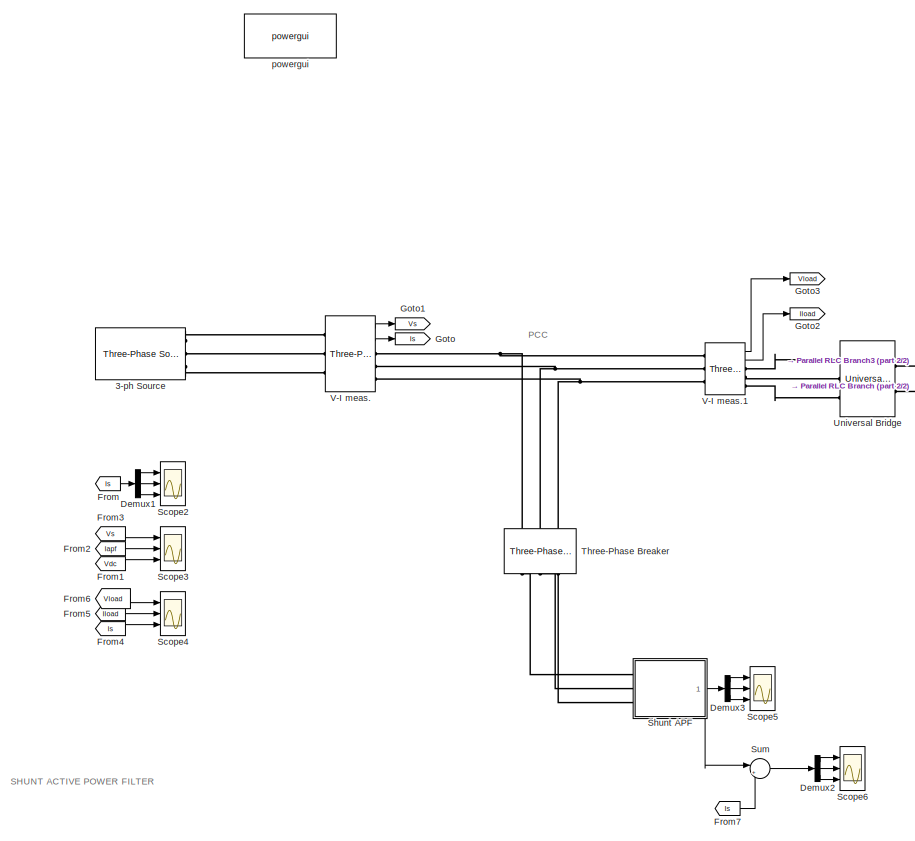
[diagram: root canvas - part 1/2, left side, full height]
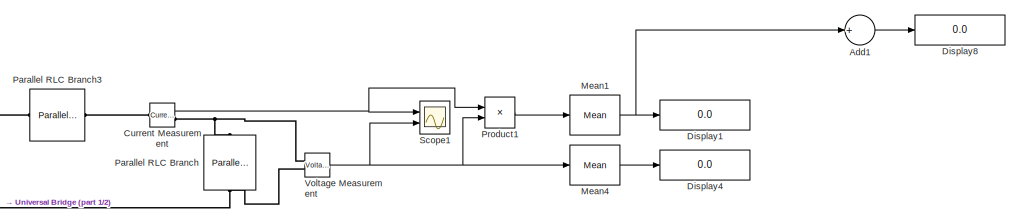
[diagram: root canvas - part 2/2, middle right region]
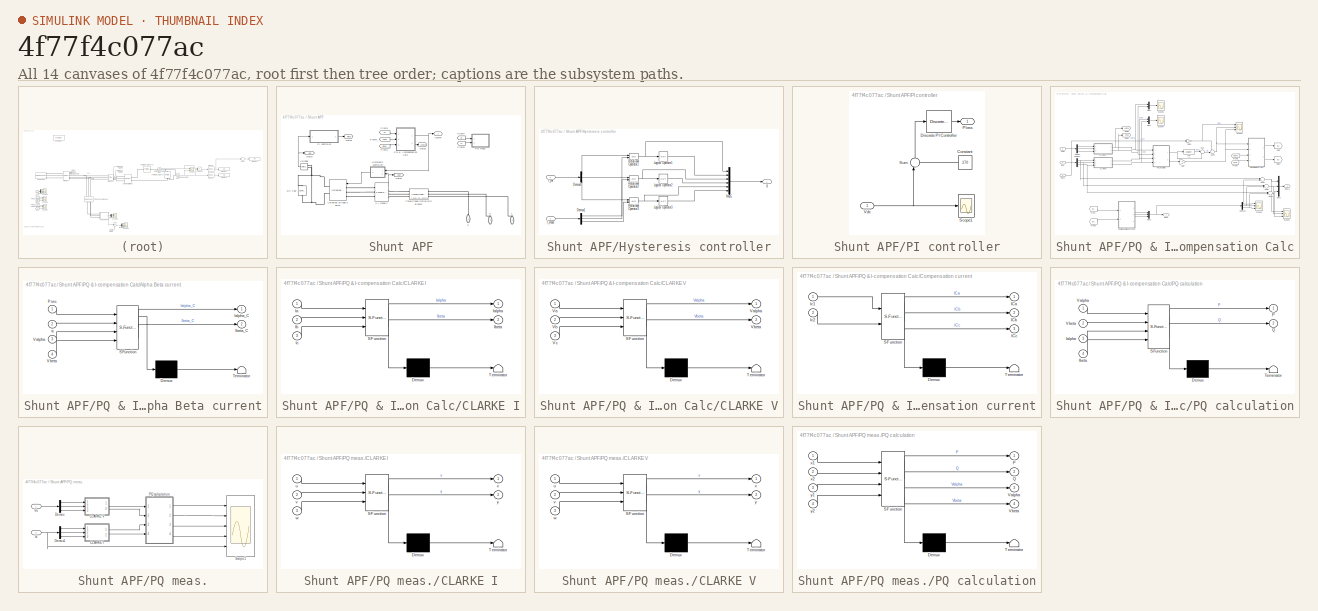
[diagram: thumbnail index - all 14 canvases of the model, root first then tree order]
MODEL slx_4f77f4c077ac
KIND model
BLOCK [Reference] 3-ph Source  REF=powerlib/Electrical
Sources/Three-Phase Source
  BaseVoltage = 25e3
  BusType = swing
  Frequency = 400
  Inductance = 1e-8
  InternalConnection = Yg
  PhaseAngle = 0
  Ports = [0, 0, 0, 0, 0, 0, 3]
  Pref = 0
  Qmax = inf
  Qmin = -inf
  Qref = 0
  Resistance = 0.001
  ShortCircuitLevel = 100e6
  SourceBlock = powerlib/Electrical\nSources/Three-Phase Source
  SourceType = Three-Phase Source
  SpecifyImpedance = off
  Voltage = 115*sqrt(3)
  XRratio = 7
BLOCK [Sum] Add1
  InputSameDT = off
  Inputs = +
  OutDataTypeStr = Inherit: Inherit via internal rule
  Ports = [1, 1]
  SaturateOnIntegerOverflow = off
BLOCK [Reference] Current Measurement  REF=powerlib/Measurements/Current Measurement
  OutputType = Complex
  PSBequivalent = 0
  PhasorSimulation = off
  Ports = [0, 1, 0, 0, 0, 1, 1]
  SourceBlock = powerlib/Measurements/Current Measurement
  SourceType = Current Measurement
  UserDataPersistent = on
BLOCK [Demux] Demux1
  DisplayOption = bar
  Outputs = 3
  Ports = [1, 3]
BLOCK [Demux] Demux2
  DisplayOption = bar
  Outputs = 3
  Ports = [1, 3]
BLOCK [Demux] Demux3
  DisplayOption = bar
  Outputs = 3
  Ports = [1, 3]
BLOCK [Display] Display1
  Decimation = 1
  Ports = [1]
BLOCK [Display] Display4
  Decimation = 1
  Ports = [1]
BLOCK [Display] Display8
  Decimation = 1
  Ports = [1]
BLOCK [From] From
  CloseFcn = tagdialog Close
  GotoTag = Is
  TagVisibility = global
BLOCK [From] From1
  CloseFcn = tagdialog Close
  GotoTag = Vdc
  TagVisibility = global
BLOCK [From] From2
  CloseFcn = tagdialog Close
  GotoTag = Iapf
  TagVisibility = global
BLOCK [From] From3
  CloseFcn = tagdialog Close
  GotoTag = Vs
  TagVisibility = global
BLOCK [From] From4
  CloseFcn = tagdialog Close
  GotoTag = Is
  TagVisibility = global
BLOCK [From] From5
  CloseFcn = tagdialog Close
  GotoTag = Iload
  TagVisibility = global
BLOCK [From] From6
  CloseFcn = tagdialog Close
  GotoTag = Vload
  TagVisibility = global
BLOCK [From] From7
  CloseFcn = tagdialog Close
  GotoTag = Is
  TagVisibility = global
BLOCK [Goto] Goto
  GotoTag = Is
  TagVisibility = global
BLOCK [Goto] Goto1
  GotoTag = Vs
  TagVisibility = global
BLOCK [Goto] Goto2
  GotoTag = Iload
  TagVisibility = global
BLOCK [Goto] Goto3
  GotoTag = Vload
  TagVisibility = global
BLOCK [Reference] Mean1  REF=powerlib_meascontrol/Measurements/Mean
  Freq = 400
  Ports = [1, 1]
  SourceBlock = powerlib_meascontrol/Measurements/Mean
  SourceType = Mean
  Ts = 0
  Vinit = 0
BLOCK [Reference] Mean4  REF=powerlib_meascontrol/Measurements/Mean
  Freq = 400
  Ports = [1, 1]
  SourceBlock = powerlib_meascontrol/Measurements/Mean
  SourceType = Mean
  Ts = 0
  Vinit = 0
BLOCK [Reference] Parallel RLC Branch  REF=powerlib/Elements/Parallel RLC Branch
  AttributesFormatString = \n
  BranchType = RC
  Capacitance = 30e-6
  Inductance = 1e-3
  InitialCurrent = 0
  InitialVoltage = 0
  LConnTagsString = a
  Measurements = None
  Ports = [0, 0, 0, 0, 0, 1, 1]
  RConnTagsString = __new0
  Resistance = 100
  SetiL0 = off
  Setx0 = off
  SourceBlock = powerlib/Elements/Parallel RLC Branch
  SourceType = Parallel RLC Branch
BLOCK [Reference] Parallel RLC Branch3  REF=powerlib/Elements/Parallel RLC Branch
  AttributesFormatString = \n
  BranchType = L
  Capacitance = 30e-6
  Inductance = 0.1e-3
  InitialCurrent = 0
  InitialVoltage = 0
  LConnTagsString = a
  Measurements = None
  Ports = [0, 0, 0, 0, 0, 1, 1]
  RConnTagsString = __new0
  Resistance = 1
  SetiL0 = off
  Setx0 = off
  SourceBlock = powerlib/Elements/Parallel RLC Branch
  SourceType = Parallel RLC Branch
BLOCK [Product] Product1
  InputSameDT = off
  OutDataTypeStr = Inherit: Inherit via internal rule
  Ports = [2, 1]
  RndMeth = Floor
  SaturateOnIntegerOverflow = off
BLOCK [Scope] Scope1
  Floating = off
  LimitDataPoints = off
  NumInputPorts = 2
  Ports = [2]
  SaveName = ScopeData1
  ShowLegends = off
  YMax = 160~600
  YMin = -20~0
  ZoomMode = yonly
BLOCK [Scope] Scope2
  DataFormat = StructureWithTime
  Floating = off
  LimitDataPoints = off
  MaxDataPoints = 500000
  NumInputPorts = 3
  Ports = [3]
  SampleTime = 0
  SaveName = Isource
  SaveToWorkspace = on
  ShowLegends = off
  TimeRange = 0.015
  YMax = 12~50~200
  YMin = -2~-200~-50
  ZoomMode = yonly
BLOCK [Scope] Scope3
  DataFormat = StructureWithTime
  Floating = off
  LimitDataPoints = off
  MaxDataPoints = 500000
  NumInputPorts = 3
  Ports = [3]
  SampleTime = 0
  SaveName = Vs_Iapf_Vdc
  SaveToWorkspace = on
  ShowLegends = off
  TimeRange = 0.015
  YMax = 200~20~1500
  YMin = -200~-10~-500
  ZoomMode = xonly
BLOCK [Scope] Scope4
  DataFormat = StructureWithTime
  Floating = off
  LimitDataPoints = off
  MaxDataPoints = 500000
  NumInputPorts = 3
  Ports = [3]
  SampleTime = 0
  SaveName = Vs_Iapf_Vdc1
  SaveToWorkspace = on
  ShowLegends = off
  TimeRange = 0.015
  YMax = 200~200~200
  YMin = -200~-200~-200
  ZoomMode = yonly
BLOCK [Scope] Scope5
  DataFormat = StructureWithTime
  Floating = off
  LimitDataPoints = off
  MaxDataPoints = 500000
  NumInputPorts = 3
  Ports = [3]
  SampleTime = 0
  SaveName = Icomp
  SaveToWorkspace = on
  ShowLegends = off
  TimeRange = 0.015
  YMax = 10~200~50
  YMin = -15~-50~-200
  ZoomMode = yonly
BLOCK [Scope] Scope6
  DataFormat = StructureWithTime
  Floating = off
  LimitDataPoints = off
  MaxDataPoints = 500000
  NumInputPorts = 3
  Ports = [3]
  SampleTime = 0
  SaveName = Icomp1
  SaveToWorkspace = on
  ShowLegends = off
  TimeRange = 0.015
  YMax = 30~20~30
  YMin = -30~-30~-30
  ZoomMode = yonly
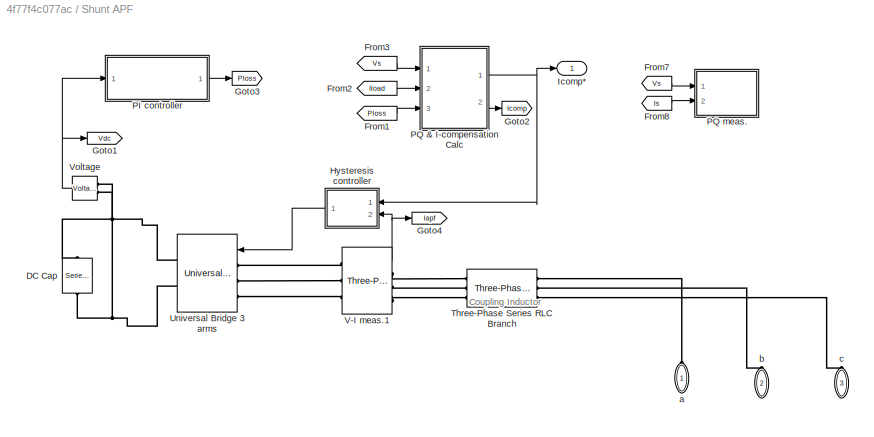
BLOCK [SubSystem] Shunt APF
  Ports = [0, 1, 0, 0, 0, 3]
  RequestExecContextInheritance = off
BLOCK [Reference] Shunt APF/DC Cap  REF=powerlib/Elements/Series RLC Branch
  BranchType = C
  Capacitance = 3.5e-6
  Inductance = 1e-3
  InitialCurrent = 0
  InitialVoltage = 400
  LConnTagsString = __new0
  Measurements = None
  Ports = [0, 0, 0, 0, 0, 1, 1]
  RConnTagsString = __new0
  Resistance = 1
  SetiL0 = off
  Setx0 = off
  SourceBlock = powerlib/Elements/Series RLC Branch
  SourceType = Series RLC Branch
BLOCK [From] Shunt APF/From1
  CloseFcn = tagdialog Close
  GotoTag = Ploss
  TagVisibility = global
BLOCK [From] Shunt APF/From2
  CloseFcn = tagdialog Close
  GotoTag = Iload
  TagVisibility = global
BLOCK [From] Shunt APF/From3
  CloseFcn = tagdialog Close
  GotoTag = Vs
  TagVisibility = global
BLOCK [From] Shunt APF/From7
  CloseFcn = tagdialog Close
  GotoTag = Vs
  TagVisibility = global
BLOCK [From] Shunt APF/From8
  CloseFcn = tagdialog Close
  GotoTag = Is
  TagVisibility = global
BLOCK [Goto] Shunt APF/Goto1
  GotoTag = Vdc
  TagVisibility = global
BLOCK [Goto] Shunt APF/Goto2
  GotoTag = Icomp
BLOCK [Goto] Shunt APF/Goto3
  GotoTag = Ploss
  TagVisibility = global
BLOCK [Goto] Shunt APF/Goto4
  GotoTag = Iapf
  TagVisibility = global
BLOCK [SubSystem] Shunt APF/Hysteresis controller
  Ports = [2, 1]
  RequestExecContextInheritance = off
BLOCK [Demux] Shunt APF/Hysteresis controller/Demux1
  DisplayOption = bar
  Outputs = 3
  Ports = [1, 3]
BLOCK [Demux] Shunt APF/Hysteresis controller/Demux9
  DisplayOption = bar
  Outputs = 3
  Ports = [1, 3]
BLOCK [Inport] Shunt APF/Hysteresis controller/I_meas
  IconDisplay = Port number
  Port = 2
BLOCK [Inport] Shunt APF/Hysteresis controller/I_ref
  IconDisplay = Port number
BLOCK [Logic] Shunt APF/Hysteresis controller/Logical Operator1
  AllPortsSameDT = off
  Operator = NOT
  OutDataTypeStr = boolean
  Ports = [1, 1]
BLOCK [Logic] Shunt APF/Hysteresis controller/Logical Operator2
  AllPortsSameDT = off
  Operator = NOT
  OutDataTypeStr = boolean
  Ports = [1, 1]
BLOCK [Logic] Shunt APF/Hysteresis controller/Logical Operator3
  AllPortsSameDT = off
  Operator = NOT
  OutDataTypeStr = boolean
  Ports = [1, 1]
BLOCK [Mux] Shunt APF/Hysteresis controller/Mux5
  DisplayOption = bar
  Inputs = 6
  Ports = [6, 1]
BLOCK [RelationalOperator] Shunt APF/Hysteresis controller/Relational Operator1
  InputSameDT = off
  OutDataTypeStr = boolean
  Ports = [2, 1]
BLOCK [RelationalOperator] Shunt APF/Hysteresis controller/Relational Operator2
  InputSameDT = off
  OutDataTypeStr = boolean
  Ports = [2, 1]
BLOCK [RelationalOperator] Shunt APF/Hysteresis controller/Relational Operator3
  InputSameDT = off
  OutDataTypeStr = boolean
  Ports = [2, 1]
BLOCK [Outport] Shunt APF/Hysteresis controller/g
  IconDisplay = Port number
BLOCK [Outport] Shunt APF/Icomp*
  IconDisplay = Port number
BLOCK [SubSystem] Shunt APF/PI controller
  Ports = [1, 1]
  RequestExecContextInheritance = off
BLOCK [Constant] Shunt APF/PI controller/Constant
  Value = 270
BLOCK [Reference] Shunt APF/PI controller/Discrete PI Controller  REF=powerlib_extras/Discrete 
Control Blocks/Discrete
PI Controller
  Init = 0
  Ki = 1
  Kp = .1
  Par_Limits = [1e6 -1e6]
  Ports = [1, 1]
  SourceBlock = powerlib_extras/Discrete \nControl Blocks/Discrete\nPI Controller
  SourceType = Discrete PI Controller
  Ts = 5e-6
BLOCK [Outport] Shunt APF/PI controller/Ploss
  IconDisplay = Port number
BLOCK [Scope] Shunt APF/PI controller/Scope1
  DataFormat = StructureWithTime
  Floating = off
  LimitDataPoints = off
  MaxDataPoints = 500000
  NumInputPorts = 1
  Ports = [1]
  SampleTime = 0
  SaveName = psb3phPWM1_str1
  SaveToWorkspace = on
  ShowLegends = off
  TimeRange = 0.1
  YMax = 140
  YMin = -20
  ZoomMode = yonly
BLOCK [Sum] Shunt APF/PI controller/Sum
  IconShape = round
  InputSameDT = off
  Inputs = |-+
  OutDataTypeStr = Inherit: Inherit via internal rule
  Ports = [2, 1]
  SaturateOnIntegerOverflow = off
BLOCK [Inport] Shunt APF/PI controller/Vdc
  IconDisplay = Port number
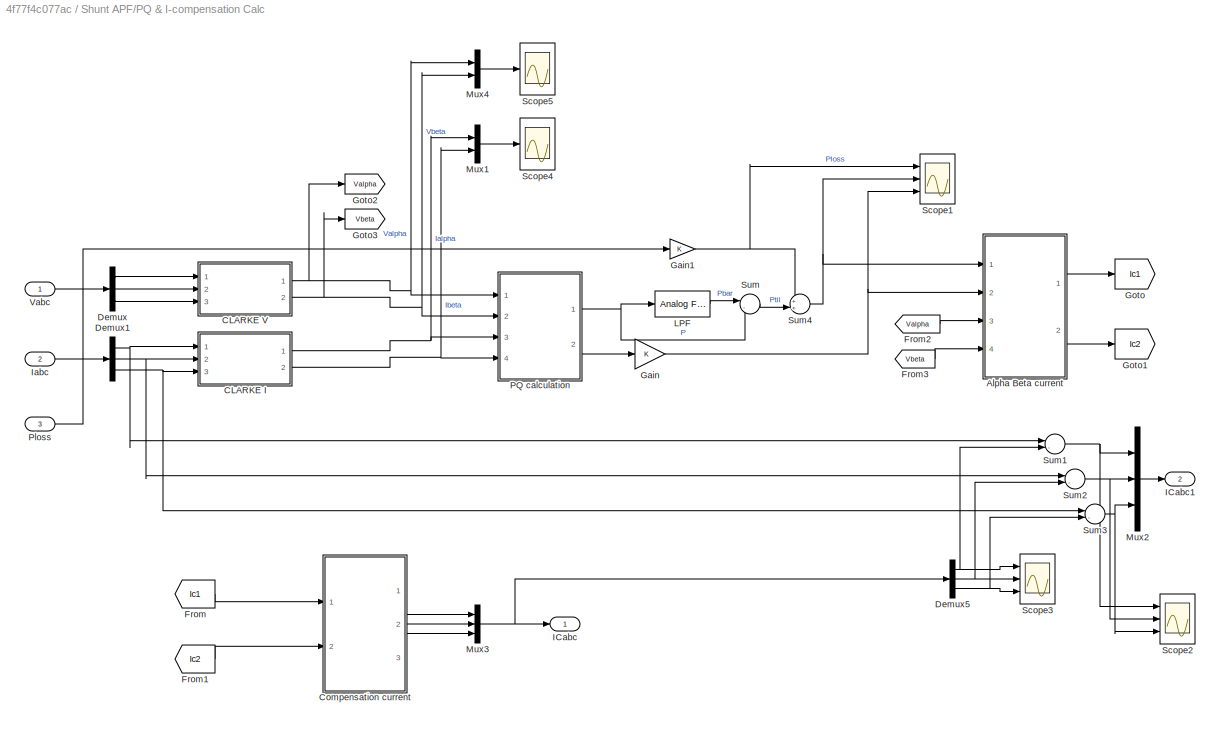
BLOCK [SubSystem] Shunt APF/PQ & I-compensation Calc
  Ports = [3, 2]
  RequestExecContextInheritance = off
BLOCK [SubSystem] Shunt APF/PQ & I-compensation Calc/Alpha Beta current
  ErrorFcn = Stateflow.Translate.translate
  PermitHierarchicalResolution = ExplicitOnly
  Ports = [4, 2]
  RequestExecContextInheritance = off
  SFBlockType = MATLAB Function
  TreatAsAtomicUnit = on
BLOCK [Demux] Shunt APF/PQ & I-compensation Calc/Alpha Beta current/ Demux 
  Outputs = 1
  Ports = [1, 1]
BLOCK [S-Function] Shunt APF/PQ & I-compensation Calc/Alpha Beta current/ SFunction 
  EnableBusSupport = on
  FunctionName = sf_sfun
  PortCounts = [4 3]
  Ports = [4, 3]
  Tag = Stateflow S-Function Filtro_teste_potencia_constante_burrice 5
BLOCK [Terminator] Shunt APF/PQ & I-compensation Calc/Alpha Beta current/ Terminator 
BLOCK [Outport] Shunt APF/PQ & I-compensation Calc/Alpha Beta current/Ialpha_C
  IconDisplay = Port number
BLOCK [Outport] Shunt APF/PQ & I-compensation Calc/Alpha Beta current/Ibeta_C
  IconDisplay = Port number
  Port = 2
BLOCK [Inport] Shunt APF/PQ & I-compensation Calc/Alpha Beta current/Posc
  IconDisplay = Port number
BLOCK [Inport] Shunt APF/PQ & I-compensation Calc/Alpha Beta current/Valpha
  IconDisplay = Port number
  Port = 3
BLOCK [Inport] Shunt APF/PQ & I-compensation Calc/Alpha Beta current/Vbeta
  IconDisplay = Port number
  Port = 4
BLOCK [Inport] Shunt APF/PQ & I-compensation Calc/Alpha Beta current/q
  IconDisplay = Port number
  Port = 2
BLOCK [SubSystem] Shunt APF/PQ & I-compensation Calc/CLARKE I
  ErrorFcn = Stateflow.Translate.translate
  PermitHierarchicalResolution = ExplicitOnly
  Ports = [3, 2]
  RequestExecContextInheritance = off
  SFBlockType = MATLAB Function
  TreatAsAtomicUnit = on
BLOCK [Demux] Shunt APF/PQ & I-compensation Calc/CLARKE I/ Demux 
  Outputs = 1
  Ports = [1, 1]
BLOCK [S-Function] Shunt APF/PQ & I-compensation Calc/CLARKE I/ SFunction 
  EnableBusSupport = on
  FunctionName = sf_sfun
  PortCounts = [3 3]
  Ports = [3, 3]
  Tag = Stateflow S-Function Filtro_teste_potencia_constante_burrice 1
BLOCK [Terminator] Shunt APF/PQ & I-compensation Calc/CLARKE I/ Terminator 
BLOCK [Inport] Shunt APF/PQ & I-compensation Calc/CLARKE I/Ia
  IconDisplay = Port number
BLOCK [Outport] Shunt APF/PQ & I-compensation Calc/CLARKE I/Ialpha
  IconDisplay = Port number
BLOCK [Inport] Shunt APF/PQ & I-compensation Calc/CLARKE I/Ib
  IconDisplay = Port number
  Port = 2
BLOCK [Outport] Shunt APF/PQ & I-compensation Calc/CLARKE I/Ibeta
  IconDisplay = Port number
  Port = 2
BLOCK [Inport] Shunt APF/PQ & I-compensation Calc/CLARKE I/Ic
  IconDisplay = Port number
  Port = 3
BLOCK [SubSystem] Shunt APF/PQ & I-compensation Calc/CLARKE V
  ErrorFcn = Stateflow.Translate.translate
  PermitHierarchicalResolution = ExplicitOnly
  Ports = [3, 2]
  RequestExecContextInheritance = off
  SFBlockType = MATLAB Function
  TreatAsAtomicUnit = on
BLOCK [Demux] Shunt APF/PQ & I-compensation Calc/CLARKE V/ Demux 
  Outputs = 1
  Ports = [1, 1]
BLOCK [S-Function] Shunt APF/PQ & I-compensation Calc/CLARKE V/ SFunction 
  EnableBusSupport = on
  FunctionName = sf_sfun
  PortCounts = [3 3]
  Ports = [3, 3]
  Tag = Stateflow S-Function Filtro_teste_potencia_constante_burrice 2
BLOCK [Terminator] Shunt APF/PQ & I-compensation Calc/CLARKE V/ Terminator 
BLOCK [Inport] Shunt APF/PQ & I-compensation Calc/CLARKE V/Va
  IconDisplay = Port number
BLOCK [Outport] Shunt APF/PQ & I-compensation Calc/CLARKE V/Valpha
  IconDisplay = Port number
BLOCK [Inport] Shunt APF/PQ & I-compensation Calc/CLARKE V/Vb
  IconDisplay = Port number
  Port = 2
BLOCK [Outport] Shunt APF/PQ & I-compensation Calc/CLARKE V/Vbeta
  IconDisplay = Port number
  Port = 2
BLOCK [Inport] Shunt APF/PQ & I-compensation Calc/CLARKE V/Vc
  IconDisplay = Port number
  Port = 3
BLOCK [SubSystem] Shunt APF/PQ & I-compensation Calc/Compensation current
  ErrorFcn = Stateflow.Translate.translate
  PermitHierarchicalResolution = ExplicitOnly
  Ports = [2, 3]
  RequestExecContextInheritance = off
  SFBlockType = MATLAB Function
  TreatAsAtomicUnit = on
BLOCK [Demux] Shunt APF/PQ & I-compensation Calc/Compensation current/ Demux 
  Outputs = 1
  Ports = [1, 1]
BLOCK [S-Function] Shunt APF/PQ & I-compensation Calc/Compensation current/ SFunction 
  EnableBusSupport = on
  FunctionName = sf_sfun
  PortCounts = [2 4]
  Ports = [2, 4]
  Tag = Stateflow S-Function Filtro_teste_potencia_constante_burrice 4
BLOCK [Terminator] Shunt APF/PQ & I-compensation Calc/Compensation current/ Terminator 
BLOCK [Outport] Shunt APF/PQ & I-compensation Calc/Compensation current/ICa
  IconDisplay = Port number
BLOCK [Outport] Shunt APF/PQ & I-compensation Calc/Compensation current/ICb
  IconDisplay = Port number
  Port = 2
BLOCK [Outport] Shunt APF/PQ & I-compensation Calc/Compensation current/ICc
  IconDisplay = Port number
  Port = 3
BLOCK [Inport] Shunt APF/PQ & I-compensation Calc/Compensation current/Ic1
  IconDisplay = Port number
BLOCK [Inport] Shunt APF/PQ & I-compensation Calc/Compensation current/Ic2
  IconDisplay = Port number
  Port = 2
BLOCK [Demux] Shunt APF/PQ & I-compensation Calc/Demux
  DisplayOption = bar
  Outputs = 3
  Ports = [1, 3]
BLOCK [Demux] Shunt APF/PQ & I-compensation Calc/Demux1
  DisplayOption = bar
  Outputs = 3
  Ports = [1, 3]
BLOCK [Demux] Shunt APF/PQ & I-compensation Calc/Demux5
  DisplayOption = bar
  Outputs = 3
  Ports = [1, 3]
BLOCK [From] Shunt APF/PQ & I-compensation Calc/From
  GotoTag = Ic1
BLOCK [From] Shunt APF/PQ & I-compensation Calc/From1
  GotoTag = Ic2
BLOCK [From] Shunt APF/PQ & I-compensation Calc/From2
  GotoTag = Valpha
BLOCK [From] Shunt APF/PQ & I-compensation Calc/From3
  GotoTag = Vbeta
BLOCK [Gain] Shunt APF/PQ & I-compensation Calc/Gain
  OutDataTypeStr = Inherit: Inherit via internal rule
  ParamDataTypeStr = Inherit: Inherit via internal rule
  SaturateOnIntegerOverflow = off
BLOCK [Gain] Shunt APF/PQ & I-compensation Calc/Gain1
  OutDataTypeStr = Inherit: Inherit via internal rule
  ParamDataTypeStr = Inherit: Inherit via internal rule
  SaturateOnIntegerOverflow = off
BLOCK [Goto] Shunt APF/PQ & I-compensation Calc/Goto
  GotoTag = Ic1
BLOCK [Goto] Shunt APF/PQ & I-compensation Calc/Goto1
  GotoTag = Ic2
BLOCK [Goto] Shunt APF/PQ & I-compensation Calc/Goto2
  GotoTag = Valpha
BLOCK [Goto] Shunt APF/PQ & I-compensation Calc/Goto3
  GotoTag = Vbeta
BLOCK [Outport] Shunt APF/PQ & I-compensation Calc/ICabc
  IconDisplay = Port number
BLOCK [Outport] Shunt APF/PQ & I-compensation Calc/ICabc1
  IconDisplay = Port number
  Port = 2
BLOCK [Inport] Shunt APF/PQ & I-compensation Calc/Iabc
  IconDisplay = Port number
  Port = 2
BLOCK [Reference] Shunt APF/PQ & I-compensation Calc/LPF  REF=dsparch4/Analog
Filter Design
  N = 5
  Ports = [1, 1]
  Rp = 2
  Rs = 40
  SourceBlock = dsparch4/Analog\nFilter Design
  SourceType = Analog Filter Design
  Whi = 80
  Wlo = 2*pi*50
  filttype = Lowpass
  method = Butterworth
BLOCK [Mux] Shunt APF/PQ & I-compensation Calc/Mux1
  DisplayOption = bar
  Inputs = 2
  Ports = [2, 1]
BLOCK [Mux] Shunt APF/PQ & I-compensation Calc/Mux2
  DisplayOption = bar
  Inputs = 3
  Ports = [3, 1]
BLOCK [Mux] Shunt APF/PQ & I-compensation Calc/Mux3
  DisplayOption = bar
  Inputs = 3
  Ports = [3, 1]
BLOCK [Mux] Shunt APF/PQ & I-compensation Calc/Mux4
  DisplayOption = bar
  Inputs = 2
  Ports = [2, 1]
BLOCK [SubSystem] Shunt APF/PQ & I-compensation Calc/PQ calculation
  ErrorFcn = Stateflow.Translate.translate
  PermitHierarchicalResolution = ExplicitOnly
  Ports = [4, 2]
  RequestExecContextInheritance = off
  SFBlockType = MATLAB Function
  TreatAsAtomicUnit = on
BLOCK [Demux] Shunt APF/PQ & I-compensation Calc/PQ calculation/ Demux 
  Outputs = 1
  Ports = [1, 1]
BLOCK [S-Function] Shunt APF/PQ & I-compensation Calc/PQ calculation/ SFunction 
  EnableBusSupport = on
  FunctionName = sf_sfun
  PortCounts = [4 3]
  Ports = [4, 3]
  Tag = Stateflow S-Function Filtro_teste_potencia_constante_burrice 3
BLOCK [Terminator] Shunt APF/PQ & I-compensation Calc/PQ calculation/ Terminator 
BLOCK [Inport] Shunt APF/PQ & I-compensation Calc/PQ calculation/Ialpha
  IconDisplay = Port number
  Port = 3
BLOCK [Inport] Shunt APF/PQ & I-compensation Calc/PQ calculation/Ibeta
  IconDisplay = Port number
  Port = 4
BLOCK [Outport] Shunt APF/PQ & I-compensation Calc/PQ calculation/P
  IconDisplay = Port number
BLOCK [Outport] Shunt APF/PQ & I-compensation Calc/PQ calculation/Q
  IconDisplay = Port number
  Port = 2
BLOCK [Inport] Shunt APF/PQ & I-compensation Calc/PQ calculation/Valpha
  IconDisplay = Port number
BLOCK [Inport] Shunt APF/PQ & I-compensation Calc/PQ calculation/Vbeta
  IconDisplay = Port number
  Port = 2
BLOCK [Inport] Shunt APF/PQ & I-compensation Calc/Ploss
  IconDisplay = Port number
  Port = 3
BLOCK [Scope] Shunt APF/PQ & I-compensation Calc/Scope1
  DataFormat = StructureWithTime
  Floating = off
  LimitDataPoints = off
  MaxDataPoints = 500000
  NumInputPorts = 3
  Ports = [3]
  SampleTime = 0
  SaveName = psb3phPWM1_str9
  SaveToWorkspace = on
  ShowLegends = off
  TimeRange = 0.015
  YMax = 32~10000~2000
  YMin = 27~-50000~-12000
  ZoomMode = yonly
BLOCK [Scope] Shunt APF/PQ & I-compensation Calc/Scope2
  DataFormat = StructureWithTime
  Floating = off
  LimitDataPoints = off
  MaxDataPoints = 500000
  NumInputPorts = 3
  Ports = [3]
  SampleTime = 0
  SaveName = psb3phPWM1_str2
  SaveToWorkspace = on
  ShowLegends = off
  TimeRange = 0.1
  YMax = 1.0025~-0.735~-0.21
  YMin = 0.9825~-0.7725~-0.265
  ZoomMode = yonly
BLOCK [Scope] Shunt APF/PQ & I-compensation Calc/Scope3
  DataFormat = StructureWithTime
  Floating = off
  LimitDataPoints = off
  MaxDataPoints = 500000
  NumInputPorts = 3
  Ports = [3]
  SampleTime = 0
  SaveName = psb3phPWM1_str7
  SaveToWorkspace = on
  ShowLegends = off
  TimeRange = 0.1
  YMax = -0.04~0.01~0.07
  YMin = -0.0625~-0.01~0.0325
  ZoomMode = yonly
BLOCK [Scope] Shunt APF/PQ & I-compensation Calc/Scope4
  DataFormat = StructureWithTime
  Floating = off
  LimitDataPoints = off
  MaxDataPoints = 500000
  NumInputPorts = 1
  Ports = [1]
  SampleTime = 0
  SaveName = psb3phPWM1_str3
  SaveToWorkspace = on
  ShowLegends = off
  TimeRange = 0.04
  YMax = 200
  YMin = -200
  ZoomMode = yonly
BLOCK [Scope] Shunt APF/PQ & I-compensation Calc/Scope5
  DataFormat = StructureWithTime
  Floating = off
  LimitDataPoints = off
  MaxDataPoints = 500000
  NumInputPorts = 1
  Ports = [1]
  SampleTime = 0
  SaveName = psb3phPWM1_str4
  SaveToWorkspace = on
  ShowLegends = off
  TimeRange = 0.015
  YMax = 20
  YMin = -10
  ZoomMode = yonly
BLOCK [Sum] Shunt APF/PQ & I-compensation Calc/Sum
  IconShape = round
  InputSameDT = off
  Inputs = |-+
  OutDataTypeStr = Inherit: Inherit via internal rule
  Ports = [2, 1]
  SaturateOnIntegerOverflow = off
BLOCK [Sum] Shunt APF/PQ & I-compensation Calc/Sum1
  IconShape = round
  InputSameDT = off
  Inputs = |-+
  OutDataTypeStr = Inherit: Inherit via internal rule
  Ports = [2, 1]
  SaturateOnIntegerOverflow = off
BLOCK [Sum] Shunt APF/PQ & I-compensation Calc/Sum2
  IconShape = round
  InputSameDT = off
  Inputs = |-+
  OutDataTypeStr = Inherit: Inherit via internal rule
  Ports = [2, 1]
  SaturateOnIntegerOverflow = off
BLOCK [Sum] Shunt APF/PQ & I-compensation Calc/Sum3
  IconShape = round
  InputSameDT = off
  Inputs = |-+
  OutDataTypeStr = Inherit: Inherit via internal rule
  Ports = [2, 1]
  SaturateOnIntegerOverflow = off
BLOCK [Sum] Shunt APF/PQ & I-compensation Calc/Sum4
  IconShape = round
  InputSameDT = off
  Inputs = ++|
  OutDataTypeStr = Inherit: Inherit via internal rule
  Ports = [2, 1]
  SaturateOnIntegerOverflow = off
BLOCK [Inport] Shunt APF/PQ & I-compensation Calc/Vabc
  IconDisplay = Port number
BLOCK [SubSystem] Shunt APF/PQ meas.
  Ports = [2]
  RequestExecContextInheritance = off
BLOCK [SubSystem] Shunt APF/PQ meas./CLARKE I
  ErrorFcn = Stateflow.Translate.translate
  PermitHierarchicalResolution = ExplicitOnly
  Ports = [3, 2]
  RequestExecContextInheritance = off
  SFBlockType = MATLAB Function
  TreatAsAtomicUnit = on
BLOCK [Demux] Shunt APF/PQ meas./CLARKE I/ Demux 
  Outputs = 1
  Ports = [1, 1]
BLOCK [S-Function] Shunt APF/PQ meas./CLARKE I/ SFunction 
  EnableBusSupport = on
  FunctionName = sf_sfun
  PortCounts = [3 3]
  Ports = [3, 3]
  Tag = Stateflow S-Function Filtro_teste_potencia_constante_burrice 6
BLOCK [Terminator] Shunt APF/PQ meas./CLARKE I/ Terminator 
BLOCK [Inport] Shunt APF/PQ meas./CLARKE I/u
  IconDisplay = Port number
BLOCK [Inport] Shunt APF/PQ meas./CLARKE I/v
  IconDisplay = Port number
  Port = 2
BLOCK [Inport] Shunt APF/PQ meas./CLARKE I/w
  IconDisplay = Port number
  Port = 3
BLOCK [Outport] Shunt APF/PQ meas./CLARKE I/x
  IconDisplay = Port number
BLOCK [Outport] Shunt APF/PQ meas./CLARKE I/y
  IconDisplay = Port number
  Port = 2
BLOCK [SubSystem] Shunt APF/PQ meas./CLARKE V
  ErrorFcn = Stateflow.Translate.translate
  PermitHierarchicalResolution = ExplicitOnly
  Ports = [3, 2]
  RequestExecContextInheritance = off
  SFBlockType = MATLAB Function
  TreatAsAtomicUnit = on
BLOCK [Demux] Shunt APF/PQ meas./CLARKE V/ Demux 
  Outputs = 1
  Ports = [1, 1]
BLOCK [S-Function] Shunt APF/PQ meas./CLARKE V/ SFunction 
  EnableBusSupport = on
  FunctionName = sf_sfun
  PortCounts = [3 3]
  Ports = [3, 3]
  Tag = Stateflow S-Function Filtro_teste_potencia_constante_burrice 7
BLOCK [Terminator] Shunt APF/PQ meas./CLARKE V/ Terminator 
BLOCK [Inport] Shunt APF/PQ meas./CLARKE V/u
  IconDisplay = Port number
BLOCK [Inport] Shunt APF/PQ meas./CLARKE V/v
  IconDisplay = Port number
  Port = 2
BLOCK [Inport] Shunt APF/PQ meas./CLARKE V/w
  IconDisplay = Port number
  Port = 3
BLOCK [Outport] Shunt APF/PQ meas./CLARKE V/x
  IconDisplay = Port number
BLOCK [Outport] Shunt APF/PQ meas./CLARKE V/y
  IconDisplay = Port number
  Port = 2
BLOCK [Demux] Shunt APF/PQ meas./Demux
  DisplayOption = bar
  Outputs = 3
  Ports = [1, 3]
BLOCK [Demux] Shunt APF/PQ meas./Demux1
  DisplayOption = bar
  Outputs = 3
  Ports = [1, 3]
BLOCK [Inport] Shunt APF/PQ meas./Is
  IconDisplay = Port number
  Port = 2
BLOCK [SubSystem] Shunt APF/PQ meas./PQ calculation
  ErrorFcn = Stateflow.Translate.translate
  PermitHierarchicalResolution = ExplicitOnly
  Ports = [4, 4]
  RequestExecContextInheritance = off
  SFBlockType = MATLAB Function
  TreatAsAtomicUnit = on
BLOCK [Demux] Shunt APF/PQ meas./PQ calculation/ Demux 
  Outputs = 1
  Ports = [1, 1]
BLOCK [S-Function] Shunt APF/PQ meas./PQ calculation/ SFunction 
  EnableBusSupport = on
  FunctionName = sf_sfun
  PortCounts = [4 5]
  Ports = [4, 5]
  Tag = Stateflow S-Function Filtro_teste_potencia_constante_burrice 8
BLOCK [Terminator] Shunt APF/PQ meas./PQ calculation/ Terminator 
BLOCK [Outport] Shunt APF/PQ meas./PQ calculation/P
  IconDisplay = Port number
BLOCK [Outport] Shunt APF/PQ meas./PQ calculation/Q
  IconDisplay = Port number
  Port = 2
BLOCK [Outport] Shunt APF/PQ meas./PQ calculation/Valpha
  IconDisplay = Port number
  Port = 3
BLOCK [Outport] Shunt APF/PQ meas./PQ calculation/Vbeta
  IconDisplay = Port number
  Port = 4
BLOCK [Inport] Shunt APF/PQ meas./PQ calculation/x1
  IconDisplay = Port number
BLOCK [Inport] Shunt APF/PQ meas./PQ calculation/x2
  IconDisplay = Port number
  Port = 2
BLOCK [Inport] Shunt APF/PQ meas./PQ calculation/y1
  IconDisplay = Port number
  Port = 3
BLOCK [Inport] Shunt APF/PQ meas./PQ calculation/y2
  IconDisplay = Port number
  Port = 4
BLOCK [Scope] Shunt APF/PQ meas./Scope1
  DataFormat = StructureWithTime
  Floating = off
  LimitDataPoints = off
  MaxDataPoints = 500000
  NumInputPorts = 5
  Ports = [5]
  SampleTime = 0
  SaveName = psb3phPWM1_str
  SaveToWorkspace = on
  ShowLegends = off
  TimeRange = 0.1
  YMax = 51.5~1~-39.91~-1.8~0.75
  YMin = 49.75~-1~-39.955~-2.7~-1.25
  ZoomMode = xonly
BLOCK [Inport] Shunt APF/PQ meas./Vs
  IconDisplay = Port number
BLOCK [Reference] Shunt APF/Three-Phase Series RLC Branch  REF=powerlib/Elements/Three-Phase
Series RLC Branch
  AttributesFormatString = \n
  BranchType = L
  Capacitance = .2e-3
  Inductance = 10e-3
  LConnTagsString = A|B|C
  Measurements = None
  Ports = [0, 0, 0, 0, 0, 3, 3]
  RConnTagsString = A|B|C
  Resistance = 1e9
  SourceBlock = powerlib/Elements/Three-Phase\nSeries RLC Branch
  SourceType = Three-Phase Series RLC Branch
BLOCK [Reference] Shunt APF/Universal Bridge 3 arms  REF=powerlib/Power
Electronics/Universal Bridge
  Arms = 3
  AttributesFormatString = \n
  Device = IGBT / Diodes
  ForwardVoltage = .8
  ForwardVoltages = [  1  1  ]
  GTOparameters = [ 10e-6 , 20e-6 ]
  IGBTparameters = [ 1e-6 , 2e-6 ]
  Lon = 0
  Measurements = None
  Measurements_2 = None
  Ports = [1, 0, 0, 0, 0, 3, 2]
  Ron = 1e-4
  SnubberCapacitance = inf
  SnubberResistance = 10000
  SourceBlock = powerlib/Power\nElectronics/Universal Bridge
  SourceType = Universal Bridge
  converterType = Rectifier
BLOCK [Reference] Shunt APF/V-I meas.1  REF=powerlib/Measurements/Three-Phase
V-I Measurement
  CurrentMeasurement = yes
  Ipu = off
  LabelI = Iabc
  LabelV = Vnm
  OutputType = Complex
  PSBequivalent = 0
  Pbase = 100e6
  PhasorSimulation = off
  Ports = [0, 1, 0, 0, 0, 3, 3]
  SetLabelI = off
  SetLabelV = on
  SourceBlock = powerlib/Measurements/Three-Phase\nV-I Measurement
  SourceType = Three-Phase VI Measurement
  Vbase = 500e3
  VoltageMeasurement = phase-to-ground
  Vpu = off
  VpuLL = off
BLOCK [Reference] Shunt APF/Voltage  REF=powerlib/Measurements/Voltage Measurement
  OutputType = Complex
  PSBequivalent = 0
  PhasorSimulation = off
  Ports = [0, 1, 0, 0, 0, 2]
  SourceBlock = powerlib/Measurements/Voltage Measurement
  SourceType = Voltage Measurement
BLOCK [PMIOPort] Shunt APF/a
  Port = 1
  Side = Left
BLOCK [PMIOPort] Shunt APF/b
  Port = 2
  Side = Left
BLOCK [PMIOPort] Shunt APF/c
  Port = 3
  Side = Left
BLOCK [Sum] Sum
  IconShape = round
  InputSameDT = off
  Inputs = |+-
  OutDataTypeStr = Inherit: Inherit via internal rule
  Ports = [2, 1]
  SaturateOnIntegerOverflow = off
BLOCK [Reference] Three-Phase Breaker  REF=powerlib/Elements/Three-Phase Breaker
  BreakerResistance = 1e-6
  External = off
  InitialState = open
  Measurements = None
  Ports = [0, 0, 0, 0, 0, 3, 3]
  SnubberCapacitance = inf
  SnubberResistance = 1e6
  SourceBlock = powerlib/Elements/Three-Phase Breaker
  SourceType = Three-Phase Breaker
  SwitchA = on
  SwitchB = on
  SwitchC = on
  SwitchTimes = 0.001
BLOCK [Reference] Universal Bridge  REF=powerlib/Power
Electronics/Universal Bridge
  Arms = 3
  Device = Diodes
  ForwardVoltage = 0
  ForwardVoltages = [  0  0  ]
  GTOparameters = [ 10e-6 , 20e-6 ]
  IGBTparameters = [ 1e-6 , 2e-6 ]
  Lon = 0
  Measurements = None
  Measurements_2 = None
  Ports = [0, 0, 0, 0, 0, 3, 2]
  Ron = 1e-3
  SnubberCapacitance = inf
  SnubberResistance = 1e5
  SourceBlock = powerlib/Power\nElectronics/Universal Bridge
  SourceType = Universal Bridge
  converterType = Rectifier
BLOCK [Reference] V-I meas.  REF=powerlib/Measurements/Three-Phase
V-I Measurement
  CurrentMeasurement = yes
  Ipu = off
  LabelI = Iabc
  LabelV = Vabc
  OutputType = Complex
  PSBequivalent = 0
  Pbase = 100e6
  PhasorSimulation = off
  Ports = [0, 2, 0, 0, 0, 3, 3]
  SetLabelI = off
  SetLabelV = off
  SourceBlock = powerlib/Measurements/Three-Phase\nV-I Measurement
  SourceType = Three-Phase VI Measurement
  Vbase = 500e3
  VoltageMeasurement = phase-to-ground
  Vpu = off
  VpuLL = off
BLOCK [Reference] V-I meas.1  REF=powerlib/Measurements/Three-Phase
V-I Measurement
  CurrentMeasurement = yes
  Ipu = off
  LabelI = Iabc
  LabelV = Vabc
  OutputType = Complex
  PSBequivalent = 0
  Pbase = 100e6
  PhasorSimulation = off
  Ports = [0, 2, 0, 0, 0, 3, 3]
  SetLabelI = off
  SetLabelV = off
  SourceBlock = powerlib/Measurements/Three-Phase\nV-I Measurement
  SourceType = Three-Phase VI Measurement
  Vbase = 500e3
  VoltageMeasurement = phase-to-ground
  Vpu = off
  VpuLL = off
BLOCK [Reference] Voltage Measurement  REF=powerlib/Measurements/Voltage Measurement
  OutputType = Complex
  PSBequivalent = 0
  PhasorSimulation = off
  Ports = [0, 1, 0, 0, 0, 2]
  SourceBlock = powerlib/Measurements/Voltage Measurement
  SourceType = Voltage Measurement
  UserDataPersistent = on
BLOCK [Reference] powergui  REF=powerlib/powergui
  DisableRonSwitches = off
  DisableSnubberDevices = off
  DisableVfSwitches = off
  DisplayEquations = off
  DisplayStyle = 2
  EnableUseOfTLC = off
  ErrMax = 1e-4
  Frange = [0:2:500]
  FreqAxis = off
  FunctionMessages = off
  HookPort = off
  Interpol = off
  Iterations = 50
  MaxFrequency = 10000
  Pbase = 100e6
  Ports = []
  Priority = 1
  ResistiveCurrentMeasurement = off
  RestoreLinks = warning
  RmsSteady = 1
  SPID = off
  SampleTime = 5e-6
  ShowGrid = off
  SolverType = Tustin/Backward Euler (TBE)
  SourceBlock = powerlib/powergui
  SourceType = PSB option menu block
  StartTime = 0.035
  SwTol = 0
  Ts = 100
  UnitsV = kV
  UnitsW = MW
  UserDataPersistent = on
  Xlog = on
  Ylog = off
  ZoomFFT = off
  cycles = 2
  display = off
  echomessages = off
  frequency = 60
  frequencyindice = 0
  frequencyindicesteady = 1
  fundamental = 50
  methode = off
  save = off
  structure = psb3phPWM1_str8
  variable = ZData
  x0status = blocks
ANNOTATION (root): PCC
ANNOTATION (root): SHUNT ACTIVE POWER FILTER
ANNOTATION Shunt APF: Coupling Inductor
LINE Add1:1 -> Display8:1
NET Current Measurement:1 -> Product1:1, Scope1:1
LINE Demux1:1 -> Scope2:1
LINE Demux1:2 -> Scope2:2
LINE Demux1:3 -> Scope2:3
LINE Demux2:1 -> Scope6:1
LINE Demux2:2 -> Scope6:2
LINE Demux2:3 -> Scope6:3
LINE Demux3:1 -> Scope5:1
LINE Demux3:2 -> Scope5:2
LINE Demux3:3 -> Scope5:3
LINE From1:1 -> Scope3:3
LINE From2:1 -> Scope3:2
LINE From3:1 -> Scope3:1
LINE From4:1 -> Scope4:3
LINE From5:1 -> Scope4:2
LINE From6:1 -> Scope4:1
LINE From7:1 -> Sum:2
LINE From:1 -> Demux1:1
NET Mean1:1 -> Add1:1, Display1:1
LINE Mean4:1 -> Display4:1
LINE Product1:1 -> Mean1:1
LINE Shunt APF/From1:1 -> Shunt APF/PQ & I-compensation Calc:3
LINE Shunt APF/From2:1 -> Shunt APF/PQ & I-compensation Calc:2
LINE Shunt APF/From3:1 -> Shunt APF/PQ & I-compensation Calc:1
LINE Shunt APF/From7:1 -> Shunt APF/PQ meas.:1
LINE Shunt APF/From8:1 -> Shunt APF/PQ meas.:2
LINE Shunt APF/Hysteresis controller/Demux1:1 -> Shunt APF/Hysteresis controller/Relational Operator1:2
LINE Shunt APF/Hysteresis controller/Demux1:2 -> Shunt APF/Hysteresis controller/Relational Operator2:2
LINE Shunt APF/Hysteresis controller/Demux1:3 -> Shunt APF/Hysteresis controller/Relational Operator3:2
LINE Shunt APF/Hysteresis controller/Demux9:1 -> Shunt APF/Hysteresis controller/Relational Operator1:1
LINE Shunt APF/Hysteresis controller/Demux9:2 -> Shunt APF/Hysteresis controller/Relational Operator2:1
LINE Shunt APF/Hysteresis controller/Demux9:3 -> Shunt APF/Hysteresis controller/Relational Operator3:1
LINE Shunt APF/Hysteresis controller/I_meas:1 -> Shunt APF/Hysteresis controller/Demux1:1
LINE Shunt APF/Hysteresis controller/I_ref:1 -> Shunt APF/Hysteresis controller/Demux9:1
LINE Shunt APF/Hysteresis controller/Logical Operator1:1 -> Shunt APF/Hysteresis controller/Mux5:2
LINE Shunt APF/Hysteresis controller/Logical Operator2:1 -> Shunt APF/Hysteresis controller/Mux5:4
LINE Shunt APF/Hysteresis controller/Logical Operator3:1 -> Shunt APF/Hysteresis controller/Mux5:6
LINE Shunt APF/Hysteresis controller/Mux5:1 -> Shunt APF/Hysteresis controller/g:1
NET Shunt APF/Hysteresis controller/Relational Operator1:1 -> Shunt APF/Hysteresis controller/Logical Operator1:1, Shunt APF/Hysteresis controller/Mux5:1
NET Shunt APF/Hysteresis controller/Relational Operator2:1 -> Shunt APF/Hysteresis controller/Logical Operator2:1, Shunt APF/Hysteresis controller/Mux5:3
NET Shunt APF/Hysteresis controller/Relational Operator3:1 -> Shunt APF/Hysteresis controller/Logical Operator3:1, Shunt APF/Hysteresis controller/Mux5:5
LINE Shunt APF/Hysteresis controller:1 -> Shunt APF/Universal Bridge 3 arms:1
LINE Shunt APF/PI controller/Constant:1 -> Shunt APF/PI controller/Sum:2
LINE Shunt APF/PI controller/Discrete PI Controller:1 -> Shunt APF/PI controller/Ploss:1
LINE Shunt APF/PI controller/Sum:1 -> Shunt APF/PI controller/Discrete PI Controller:1
NET Shunt APF/PI controller/Vdc:1 -> Shunt APF/PI controller/Scope1:1, Shunt APF/PI controller/Sum:1
LINE Shunt APF/PI controller:1 -> Shunt APF/Goto3:1
LINE Shunt APF/PQ & I-compensation Calc/Alpha Beta current:1 -> Shunt APF/PQ & I-compensation Calc/Goto:1
LINE Shunt APF/PQ & I-compensation Calc/Alpha Beta current:2 -> Shunt APF/PQ & I-compensation Calc/Goto1:1
NET Shunt APF/PQ & I-compensation Calc/CLARKE I:1 -> Shunt APF/PQ & I-compensation Calc/Mux1:1, Shunt APF/PQ & I-compensation Calc/PQ calculation:3
NET Shunt APF/PQ & I-compensation Calc/CLARKE I:2 -> Shunt APF/PQ & I-compensation Calc/Mux1:2, Shunt APF/PQ & I-compensation Calc/PQ calculation:4
NET Shunt APF/PQ & I-compensation Calc/CLARKE V:1 -> Shunt APF/PQ & I-compensation Calc/Goto2:1, Shunt APF/PQ & I-compensation Calc/Mux4:1, Shunt APF/PQ & I-compensation Calc/PQ calculation:1
NET Shunt APF/PQ & I-compensation Calc/CLARKE V:2 -> Shunt APF/PQ & I-compensation Calc/Goto3:1, Shunt APF/PQ & I-compensation Calc/Mux4:2, Shunt APF/PQ & I-compensation Calc/PQ calculation:2
LINE Shunt APF/PQ & I-compensation Calc/Compensation current:1 -> Shunt APF/PQ & I-compensation Calc/Mux3:1
LINE Shunt APF/PQ & I-compensation Calc/Compensation current:2 -> Shunt APF/PQ & I-compensation Calc/Mux3:2
LINE Shunt APF/PQ & I-compensation Calc/Compensation current:3 -> Shunt APF/PQ & I-compensation Calc/Mux3:3
NET Shunt APF/PQ & I-compensation Calc/Demux1:1 -> Shunt APF/PQ & I-compensation Calc/CLARKE I:1, Shunt APF/PQ & I-compensation Calc/Sum1:1
NET Shunt APF/PQ & I-compensation Calc/Demux1:2 -> Shunt APF/PQ & I-compensation Calc/CLARKE I:2, Shunt APF/PQ & I-compensation Calc/Sum2:1
NET Shunt APF/PQ & I-compensation Calc/Demux1:3 -> Shunt APF/PQ & I-compensation Calc/CLARKE I:3, Shunt APF/PQ & I-compensation Calc/Sum3:1
NET Shunt APF/PQ & I-compensation Calc/Demux5:1 -> Shunt APF/PQ & I-compensation Calc/Scope3:1, Shunt APF/PQ & I-compensation Calc/Sum1:2
NET Shunt APF/PQ & I-compensation Calc/Demux5:2 -> Shunt APF/PQ & I-compensation Calc/Scope3:2, Shunt APF/PQ & I-compensation Calc/Sum2:2
NET Shunt APF/PQ & I-compensation Calc/Demux5:3 -> Shunt APF/PQ & I-compensation Calc/Scope3:3, Shunt APF/PQ & I-compensation Calc/Sum3:2
LINE Shunt APF/PQ & I-compensation Calc/Demux:1 -> Shunt APF/PQ & I-compensation Calc/CLARKE V:1
LINE Shunt APF/PQ & I-compensation Calc/Demux:2 -> Shunt APF/PQ & I-compensation Calc/CLARKE V:2
LINE Shunt APF/PQ & I-compensation Calc/Demux:3 -> Shunt APF/PQ & I-compensation Calc/CLARKE V:3
LINE Shunt APF/PQ & I-compensation Calc/From1:1 -> Shunt APF/PQ & I-compensation Calc/Compensation current:2
LINE Shunt APF/PQ & I-compensation Calc/From2:1 -> Shunt APF/PQ & I-compensation Calc/Alpha Beta current:3
LINE Shunt APF/PQ & I-compensation Calc/From3:1 -> Shunt APF/PQ & I-compensation Calc/Alpha Beta current:4
LINE Shunt APF/PQ & I-compensation Calc/From:1 -> Shunt APF/PQ & I-compensation Calc/Compensation current:1
NET Shunt APF/PQ & I-compensation Calc/Gain1:1 -> Shunt APF/PQ & I-compensation Calc/Scope1:1, Shunt APF/PQ & I-compensation Calc/Sum4:1
NET Shunt APF/PQ & I-compensation Calc/Gain:1 -> Shunt APF/PQ & I-compensation Calc/Alpha Beta current:2, Shunt APF/PQ & I-compensation Calc/Scope1:3
LINE Shunt APF/PQ & I-compensation Calc/Iabc:1 -> Shunt APF/PQ & I-compensation Calc/Demux1:1
LINE Shunt APF/PQ & I-compensation Calc/LPF:1 -> Shunt APF/PQ & I-compensation Calc/Sum:1
LINE Shunt APF/PQ & I-compensation Calc/Mux1:1 -> Shunt APF/PQ & I-compensation Calc/Scope4:1
LINE Shunt APF/PQ & I-compensation Calc/Mux2:1 -> Shunt APF/PQ & I-compensation Calc/ICabc1:1
NET Shunt APF/PQ & I-compensation Calc/Mux3:1 -> Shunt APF/PQ & I-compensation Calc/Demux5:1, Shunt APF/PQ & I-compensation Calc/ICabc:1
LINE Shunt APF/PQ & I-compensation Calc/Mux4:1 -> Shunt APF/PQ & I-compensation Calc/Scope5:1
NET Shunt APF/PQ & I-compensation Calc/PQ calculation:1 -> Shunt APF/PQ & I-compensation Calc/LPF:1, Shunt APF/PQ & I-compensation Calc/Sum:2
LINE Shunt APF/PQ & I-compensation Calc/PQ calculation:2 -> Shunt APF/PQ & I-compensation Calc/Gain:1
LINE Shunt APF/PQ & I-compensation Calc/Ploss:1 -> Shunt APF/PQ & I-compensation Calc/Gain1:1
NET Shunt APF/PQ & I-compensation Calc/Sum1:1 -> Shunt APF/PQ & I-compensation Calc/Mux2:1, Shunt APF/PQ & I-compensation Calc/Scope2:1
NET Shunt APF/PQ & I-compensation Calc/Sum2:1 -> Shunt APF/PQ & I-compensation Calc/Mux2:2, Shunt APF/PQ & I-compensation Calc/Scope2:2
NET Shunt APF/PQ & I-compensation Calc/Sum3:1 -> Shunt APF/PQ & I-compensation Calc/Mux2:3, Shunt APF/PQ & I-compensation Calc/Scope2:3
NET Shunt APF/PQ & I-compensation Calc/Sum4:1 -> Shunt APF/PQ & I-compensation Calc/Alpha Beta current:1, Shunt APF/PQ & I-compensation Calc/Scope1:2
LINE Shunt APF/PQ & I-compensation Calc/Sum:1 -> Shunt APF/PQ & I-compensation Calc/Sum4:2
LINE Shunt APF/PQ & I-compensation Calc/Vabc:1 -> Shunt APF/PQ & I-compensation Calc/Demux:1
NET Shunt APF/PQ & I-compensation Calc:1 -> Shunt APF/Hysteresis controller:1, Shunt APF/Icomp*:1
LINE Shunt APF/PQ & I-compensation Calc:2 -> Shunt APF/Goto2:1
LINE Shunt APF/PQ meas./CLARKE I:1 -> Shunt APF/PQ meas./PQ calculation:3
LINE Shunt APF/PQ meas./CLARKE I:2 -> Shunt APF/PQ meas./PQ calculation:4
LINE Shunt APF/PQ meas./CLARKE V:1 -> Shunt APF/PQ meas./PQ calculation:1
LINE Shunt APF/PQ meas./CLARKE V:2 -> Shunt APF/PQ meas./PQ calculation:2
LINE Shunt APF/PQ meas./Demux1:1 -> Shunt APF/PQ meas./CLARKE I:1
LINE Shunt APF/PQ meas./Demux1:2 -> Shunt APF/PQ meas./CLARKE I:2
LINE Shunt APF/PQ meas./Demux1:3 -> Shunt APF/PQ meas./CLARKE I:3
LINE Shunt APF/PQ meas./Demux:1 -> Shunt APF/PQ meas./CLARKE V:1
LINE Shunt APF/PQ meas./Demux:2 -> Shunt APF/PQ meas./CLARKE V:2
LINE Shunt APF/PQ meas./Demux:3 -> Shunt APF/PQ meas./CLARKE V:3
NET Shunt APF/PQ meas./Is:1 -> Shunt APF/PQ meas./Demux1:1, Shunt APF/PQ meas./Scope1:5
LINE Shunt APF/PQ meas./PQ calculation:1 -> Shunt APF/PQ meas./Scope1:1
LINE Shunt APF/PQ meas./PQ calculation:2 -> Shunt APF/PQ meas./Scope1:2
LINE Shunt APF/PQ meas./PQ calculation:3 -> Shunt APF/PQ meas./Scope1:3
LINE Shunt APF/PQ meas./PQ calculation:4 -> Shunt APF/PQ meas./Scope1:4
LINE Shunt APF/PQ meas./Vs:1 -> Shunt APF/PQ meas./Demux:1
NET Shunt APF/V-I meas.1:1 -> Shunt APF/Goto4:1, Shunt APF/Hysteresis controller:2
NET Shunt APF/Voltage:1 -> Shunt APF/Goto1:1, Shunt APF/PI controller:1
NET Shunt APF:1 -> Demux3:1, Sum:1
LINE Sum:1 -> Demux2:1
LINE V-I meas.1:1 -> Goto3:1
LINE V-I meas.1:2 -> Goto2:1
LINE V-I meas.:1 -> Goto1:1
LINE V-I meas.:2 -> Goto:1
NET Voltage Measurement:1 -> Mean4:1, Product1:2, Scope1:2
PLINE 3-ph Source:RConn1 -- V-I meas.:LConn1
PLINE 3-ph Source:RConn2 -- V-I meas.:LConn2
PLINE 3-ph Source:RConn3 -- V-I meas.:LConn3
PLINE Current Measurement:LConn1 -- Parallel RLC Branch3:LConn1
PNET net1: Current Measurement:RConn1 -- Parallel RLC Branch:LConn1 -- Voltage Measurement:LConn1
PLINE Parallel RLC Branch3:RConn1 -- Universal Bridge:RConn1
PNET net2: Parallel RLC Branch:RConn1 -- Universal Bridge:RConn2 -- Voltage Measurement:LConn2
PNET net3: Shunt APF/DC Cap:LConn1 -- Shunt APF/Universal Bridge 3 arms:RConn1 -- Shunt APF/Voltage:LConn1
PNET net4: Shunt APF/DC Cap:RConn1 -- Shunt APF/Universal Bridge 3 arms:RConn2 -- Shunt APF/Voltage:LConn2
PLINE Shunt APF/Three-Phase Series RLC Branch:LConn1 -- Shunt APF/V-I meas.1:RConn1
PLINE Shunt APF/Three-Phase Series RLC Branch:LConn2 -- Shunt APF/V-I meas.1:RConn2
PLINE Shunt APF/Three-Phase Series RLC Branch:LConn3 -- Shunt APF/V-I meas.1:RConn3
PLINE Shunt APF/Three-Phase Series RLC Branch:RConn1 -- Shunt APF/a:RConn1
PLINE Shunt APF/Three-Phase Series RLC Branch:RConn2 -- Shunt APF/b:RConn1
PLINE Shunt APF/Three-Phase Series RLC Branch:RConn3 -- Shunt APF/c:RConn1
PLINE Shunt APF/Universal Bridge 3 arms:LConn1 -- Shunt APF/V-I meas.1:LConn1
PLINE Shunt APF/Universal Bridge 3 arms:LConn2 -- Shunt APF/V-I meas.1:LConn2
PLINE Shunt APF/Universal Bridge 3 arms:LConn3 -- Shunt APF/V-I meas.1:LConn3
PLINE Shunt APF:LConn1 -- Three-Phase Breaker:RConn1
PLINE Shunt APF:LConn2 -- Three-Phase Breaker:RConn2
PLINE Shunt APF:LConn3 -- Three-Phase Breaker:RConn3
PNET net5: Three-Phase Breaker:LConn1 -- V-I meas.1:LConn1 -- V-I meas.:RConn1
PNET net6: Three-Phase Breaker:LConn2 -- V-I meas.1:LConn2 -- V-I meas.:RConn2
PNET net7: Three-Phase Breaker:LConn3 -- V-I meas.1:LConn3 -- V-I meas.:RConn3
PLINE Universal Bridge:LConn1 -- V-I meas.1:RConn1
PLINE Universal Bridge:LConn2 -- V-I meas.1:RConn2
PLINE Universal Bridge:LConn3 -- V-I meas.1:RConn3
note: NET lines group one-source signal fan-out (src -> all destinations, sorted); 1:1 wires keep LINE; PNET lines group multi-terminal physical nets as a canonical sorted terminal list (undirected conserving connections); 2-terminal nets keep the pairwise PLINE form
CHART Shunt APF/PQ & I-compensation Calc/CLARKE I states=1 transitions=1
  STATE_LABEL 'eML_blk_kernel()'
  STATE_LABEL 'SCRIPT:\nfunction [Ialpha,Ibeta] = ICT(Ia,Ib,Ic)\n%#em1\n\nIalpha = sqrt(2/3)*(Ia- 1/2*Ib - 1/2*Ic);\nIbeta = sqrt(2/3)*(0+ sqrt(3)/2*Ib - sqrt(3)/2*Ic);\n\n\n'
CHART Shunt APF/PQ & I-compensation Calc/CLARKE V states=1 transitions=1
  STATE_LABEL 'eML_blk_kernel()'
  STATE_LABEL 'SCRIPT:\nfunction [Valpha,Vbeta] = VCT(Va,Vb,Vc)\n%#em1\n\nValpha = sqrt(2/3)*(Va - 1/2*Vb - 1/2*Vc);\nVbeta = sqrt(2/3)*(0 + sqrt(3)/2*Vb - sqrt(3)/2*Vc);\n\n\n'
CHART Shunt APF/PQ & I-compensation Calc/PQ calculation states=1 transitions=1
  STATE_LABEL 'eML_blk_kernel()'
  STATE_LABEL 'SCRIPT:\nfunction [P,Q] = PQ(Valpha,Vbeta,Ialpha,Ibeta)\n%#em1\n\nP = (Valpha*Ialpha)+(Vbeta*Ibeta);\nQ = (Vbeta*Ialpha)-(Valpha*Ibeta);\n\n\n'
CHART Shunt APF/PQ & I-compensation Calc/Compensation current states=1 transitions=1
  STATE_LABEL 'eML_blk_kernel()'
  STATE_LABEL 'SCRIPT:\nfunction [ICa,ICb,ICc] = Ical(Ic1,Ic2)\n%#em1\n\nICa = sqrt(2/3)*(Ic1);\nICb = sqrt(2/3)*((-0.5*Ic1)+((sqrt(3)/2)*Ic2));\nICc = sqrt(2/3)*((-0.5*Ic1)-((sqrt(3)/2)*Ic2));\n\n\n'
CHART Shunt APF/PQ & I-compensation Calc/Alpha Beta current states=1 transitions=1
  STATE_LABEL 'eML_blk_kernel()'
  STATE_LABEL 'SCRIPT:\nfunction [Ialpha_C,Ibeta_C] = ICOM(Posc,q,Valpha,Vbeta)\n%#em1\n\nIalpha_C = 1/(Valpha^2 + Vbeta^2)*(Posc*Valpha + q*Vbeta);\nIbeta_C = 1/(Valpha^2 + Vbeta^2)*(Posc*Vbeta - q*Valpha);\n\n\n'
CHART Shunt APF/PQ meas./CLARKE I states=1 transitions=1
  STATE_LABEL 'eML_blk_kernel()'
  STATE_LABEL 'SCRIPT:\nfunction [x,y] = ICT(u,v,w)\n%#em1\n\nx = sqrt(2/3)*(u-(0.5*v)-(0.5*w));\ny = sqrt(2)*(0+(0.5*v)-(0.5*w));\n\n\n'
CHART Shunt APF/PQ meas./CLARKE V states=1 transitions=1
  STATE_LABEL 'eML_blk_kernel()'
  STATE_LABEL 'SCRIPT:\nfunction [x,y] = VCT(u,v,w)\n%#em1\n\nx = sqrt(2/3)*(u-(0.5*v)-(0.5*w));\ny = sqrt(2)*(0+(0.5*v)-(0.5*w));\n\n\n'
CHART Shunt APF/PQ meas./PQ calculation states=1 transitions=1
  STATE_LABEL 'eML_blk_kernel()'
  STATE_LABEL 'SCRIPT:\nfunction [P,Q,Valpha,Vbeta] = PQ(x1,x2,y1,y2)\n%#em1\n\nP = (x1*y1)+(x2*y2);\nQ = (x2*y1)-(x1*y2);\nValpha = x1;\nVbeta = x2;\n\n'
